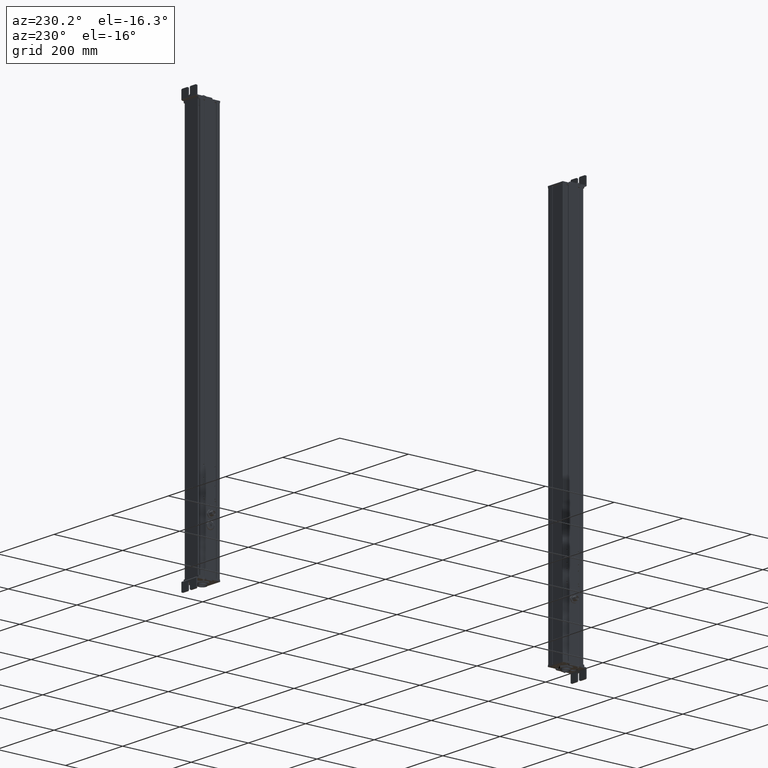
[diagram: clean part render]
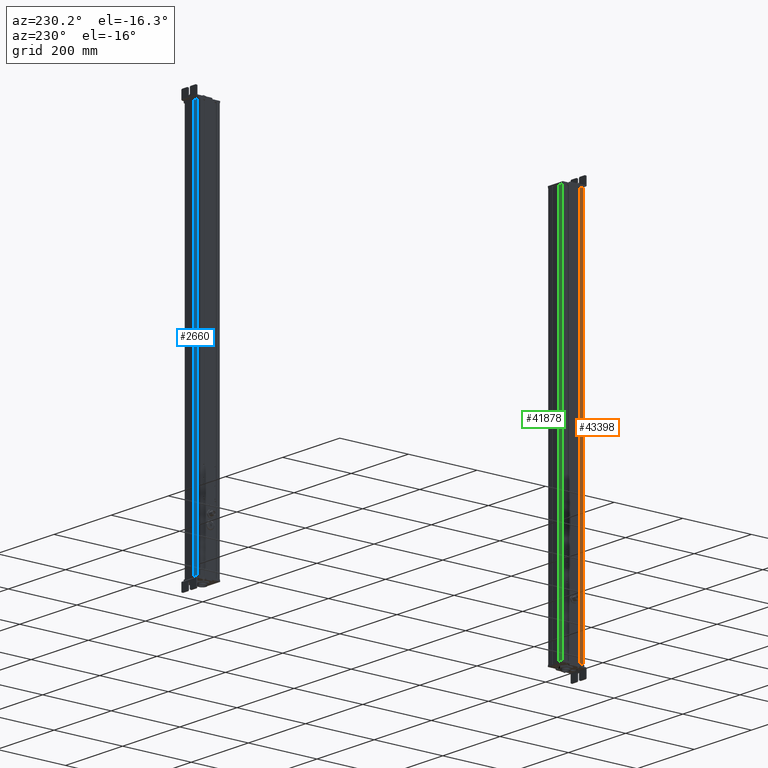
[diagram: same view with three faces highlighted in distinct colors, each labeled with its STEP entity id]
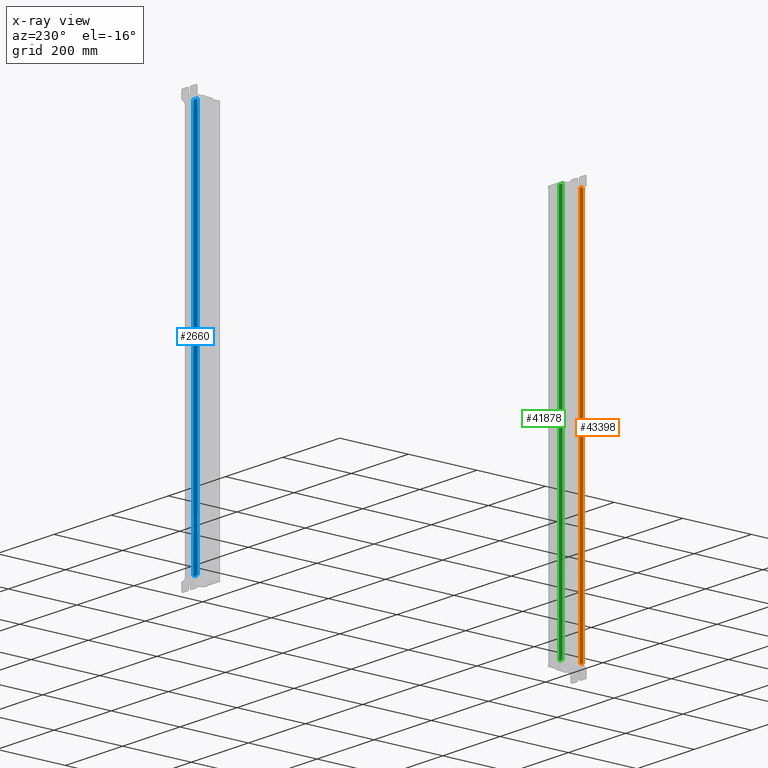
[diagram: x-ray of the same camera — body ghosted, the three highlighted faces saturated]
A machine part, auxiliary view with three faces highlighted in distinct colors.
The next image is the same camera in x-ray (body ghosted, the three faces saturated) — at least one of them is partly hidden behind the body in this view.
Their STEP definitions:

[orange] entity #43398 — the highlighted planar face has unit normal (-1, 0, 0).
#41910=CARTESIAN_POINT('Axis2P3D Location',(613.195548937,133.067790275,0.)) ;
#43351=CARTESIAN_POINT('Vertex',(613.195548938,133.067790275,0.)) ;
#43354=CARTESIAN_POINT('Line Origine',(613.195548938,133.067790275,556.)) ;
#43358=CARTESIAN_POINT('Vertex',(613.195548938,133.067790275,1112.)) ;
#43373=CARTESIAN_POINT('Line Origine',(613.195548937,128.589896023,0.)) ;
#43377=CARTESIAN_POINT('Vertex',(613.195548937,124.112001771,0.)) ;
#43380=CARTESIAN_POINT('Line Origine',(613.195548937,124.112001771,556.)) ;
#43384=CARTESIAN_POINT('Vertex',(613.195548937,124.112001771,1112.)) ;
#43387=CARTESIAN_POINT('Line Origine',(613.195548937,128.589896023,1112.)) ;
#41911=DIRECTION('Axis2P3D Direction',(-1.,0.,0.)) ;
#41912=DIRECTION('Axis2P3D XDirection',(0.,-1.,0.)) ;
#43355=DIRECTION('Vector Direction',(0.,0.,1.)) ;
#43374=DIRECTION('Vector Direction',(0.,-1.,0.)) ;
#43381=DIRECTION('Vector Direction',(0.,0.,1.)) ;
#43388=DIRECTION('Vector Direction',(0.,-1.,0.)) ;
#41913=AXIS2_PLACEMENT_3D('Plane Axis2P3D',#41910,#41911,#41912) ;
#43393=ORIENTED_EDGE('',*,*,#43360,.F.) ;
#43394=ORIENTED_EDGE('',*,*,#43379,.T.) ;
#43395=ORIENTED_EDGE('',*,*,#43386,.T.) ;
#43396=ORIENTED_EDGE('',*,*,#43391,.F.) ;
#43356=VECTOR('Line Direction',#43355,1.) ;
#43375=VECTOR('Line Direction',#43374,1.) ;
#43382=VECTOR('Line Direction',#43381,1.) ;
#43389=VECTOR('Line Direction',#43388,1.) ;
#43398=ADVANCED_FACE('Body.2',(#43397),#41914,.T.) ;
#43360=EDGE_CURVE('',#43352,#43359,#43357,.T.) ;
#43379=EDGE_CURVE('',#43352,#43378,#43376,.T.) ;
#43386=EDGE_CURVE('',#43378,#43385,#43383,.T.) ;
#43391=EDGE_CURVE('',#43359,#43385,#43390,.T.) ;
#43392=EDGE_LOOP('',(#43393,#43394,#43395,#43396)) ;
#43397=FACE_OUTER_BOUND('',#43392,.T.) ;
#43357=LINE('Line',#43354,#43356) ;
#43376=LINE('Line',#43373,#43375) ;
#43383=LINE('Line',#43380,#43382) ;
#43390=LINE('Line',#43387,#43389) ;
#41914=PLANE('Plane',#41913) ;
#43352=VERTEX_POINT('',#43351) ;
#43359=VERTEX_POINT('',#43358) ;
#43378=VERTEX_POINT('',#43377) ;
#43385=VERTEX_POINT('',#43384) ;

[blue] entity #2660 — the highlighted planar face has unit normal (0, 1, 0).
#2480=CARTESIAN_POINT('Axis2P3D Location',(647.67209889,120.060780121,0.)) ;
#2613=CARTESIAN_POINT('Vertex',(647.67209889,120.060780121,1112.)) ;
#2620=CARTESIAN_POINT('Vertex',(647.67209889,120.060780121,0.)) ;
#2623=CARTESIAN_POINT('Line Origine',(647.67209889,120.060780121,556.)) ;
#2635=CARTESIAN_POINT('Line Origine',(654.908380451,120.060780121,0.)) ;
#2639=CARTESIAN_POINT('Vertex',(662.144662012,120.060780121,0.)) ;
#2642=CARTESIAN_POINT('Line Origine',(662.144662012,120.060780121,556.)) ;
#2646=CARTESIAN_POINT('Vertex',(662.144662012,120.060780121,1112.)) ;
#2649=CARTESIAN_POINT('Line Origine',(654.908380451,120.060780121,1112.)) ;
#2481=DIRECTION('Axis2P3D Direction',(0.,-1.,0.)) ;
#2482=DIRECTION('Axis2P3D XDirection',(1.,0.,0.)) ;
#2624=DIRECTION('Vector Direction',(0.,0.,1.)) ;
#2636=DIRECTION('Vector Direction',(1.,0.,0.)) ;
#2643=DIRECTION('Vector Direction',(0.,0.,1.)) ;
#2650=DIRECTION('Vector Direction',(1.,0.,0.)) ;
#2483=AXIS2_PLACEMENT_3D('Plane Axis2P3D',#2480,#2481,#2482) ;
#2655=ORIENTED_EDGE('',*,*,#2627,.F.) ;
#2656=ORIENTED_EDGE('',*,*,#2641,.T.) ;
#2657=ORIENTED_EDGE('',*,*,#2648,.T.) ;
#2658=ORIENTED_EDGE('',*,*,#2653,.F.) ;
#2625=VECTOR('Line Direction',#2624,1.) ;
#2637=VECTOR('Line Direction',#2636,1.) ;
#2644=VECTOR('Line Direction',#2643,1.) ;
#2651=VECTOR('Line Direction',#2650,1.) ;
#2660=ADVANCED_FACE('Body.2',(#2659),#2484,.T.) ;
#2627=EDGE_CURVE('',#2621,#2614,#2626,.T.) ;
#2641=EDGE_CURVE('',#2621,#2640,#2638,.T.) ;
#2648=EDGE_CURVE('',#2640,#2647,#2645,.T.) ;
#2653=EDGE_CURVE('',#2614,#2647,#2652,.T.) ;
#2654=EDGE_LOOP('',(#2655,#2656,#2657,#2658)) ;
#2659=FACE_OUTER_BOUND('',#2654,.T.) ;
#2626=LINE('Line',#2623,#2625) ;
#2638=LINE('Line',#2635,#2637) ;
#2645=LINE('Line',#2642,#2644) ;
#2652=LINE('Line',#2649,#2651) ;
#2484=PLANE('Plane',#2483) ;
#2614=VERTEX_POINT('',#2613) ;
#2621=VERTEX_POINT('',#2620) ;
#2640=VERTEX_POINT('',#2639) ;
#2647=VERTEX_POINT('',#2646) ;

[green] entity #41878 — the highlighted planar face has unit normal (0, 1, 0).
#41826=CARTESIAN_POINT('Vertex',(627.895548938,182.060203323,0.)) ;
#41829=CARTESIAN_POINT('Line Origine',(627.895548938,182.060203323,556.)) ;
#41833=CARTESIAN_POINT('Vertex',(627.895548938,182.060203323,1112.)) ;
#41848=CARTESIAN_POINT('Axis2P3D Location',(664.195883662,182.060203323,0.)) ;
#41853=CARTESIAN_POINT('Line Origine',(621.545548937,182.060203323,0.)) ;
#41857=CARTESIAN_POINT('Vertex',(615.195548937,182.060203323,0.)) ;
#41860=CARTESIAN_POINT('Line Origine',(615.195548937,182.060203323,556.)) ;
#41864=CARTESIAN_POINT('Vertex',(615.195548937,182.060203323,1112.)) ;
#41867=CARTESIAN_POINT('Line Origine',(621.545548937,182.060203323,1112.)) ;
#41830=DIRECTION('Vector Direction',(0.,0.,1.)) ;
#41849=DIRECTION('Axis2P3D Direction',(0.,1.,-0.)) ;
#41850=DIRECTION('Axis2P3D XDirection',(-1.,0.,0.)) ;
#41854=DIRECTION('Vector Direction',(-1.,0.,0.)) ;
#41861=DIRECTION('Vector Direction',(0.,0.,1.)) ;
#41868=DIRECTION('Vector Direction',(-1.,0.,0.)) ;
#41851=AXIS2_PLACEMENT_3D('Plane Axis2P3D',#41848,#41849,#41850) ;
#41873=ORIENTED_EDGE('',*,*,#41835,.F.) ;
#41874=ORIENTED_EDGE('',*,*,#41859,.T.) ;
#41875=ORIENTED_EDGE('',*,*,#41866,.T.) ;
#41876=ORIENTED_EDGE('',*,*,#41871,.F.) ;
#41831=VECTOR('Line Direction',#41830,1.) ;
#41855=VECTOR('Line Direction',#41854,1.) ;
#41862=VECTOR('Line Direction',#41861,1.) ;
#41869=VECTOR('Line Direction',#41868,1.) ;
#41878=ADVANCED_FACE('Body.2',(#41877),#41852,.T.) ;
#41835=EDGE_CURVE('',#41827,#41834,#41832,.T.) ;
#41859=EDGE_CURVE('',#41827,#41858,#41856,.T.) ;
#41866=EDGE_CURVE('',#41858,#41865,#41863,.T.) ;
#41871=EDGE_CURVE('',#41834,#41865,#41870,.T.) ;
#41872=EDGE_LOOP('',(#41873,#41874,#41875,#41876)) ;
#41877=FACE_OUTER_BOUND('',#41872,.T.) ;
#41832=LINE('Line',#41829,#41831) ;
#41856=LINE('Line',#41853,#41855) ;
#41863=LINE('Line',#41860,#41862) ;
#41870=LINE('Line',#41867,#41869) ;
#41852=PLANE('Plane',#41851) ;
#41827=VERTEX_POINT('',#41826) ;
#41834=VERTEX_POINT('',#41833) ;
#41858=VERTEX_POINT('',#41857) ;
#41865=VERTEX_POINT('',#41864) ;